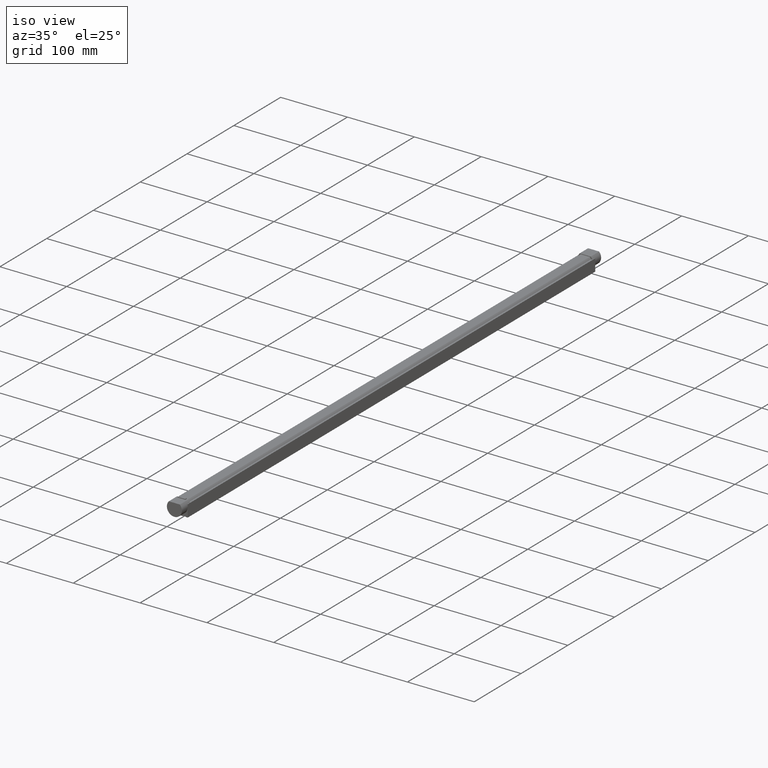
[diagram: clean part render]
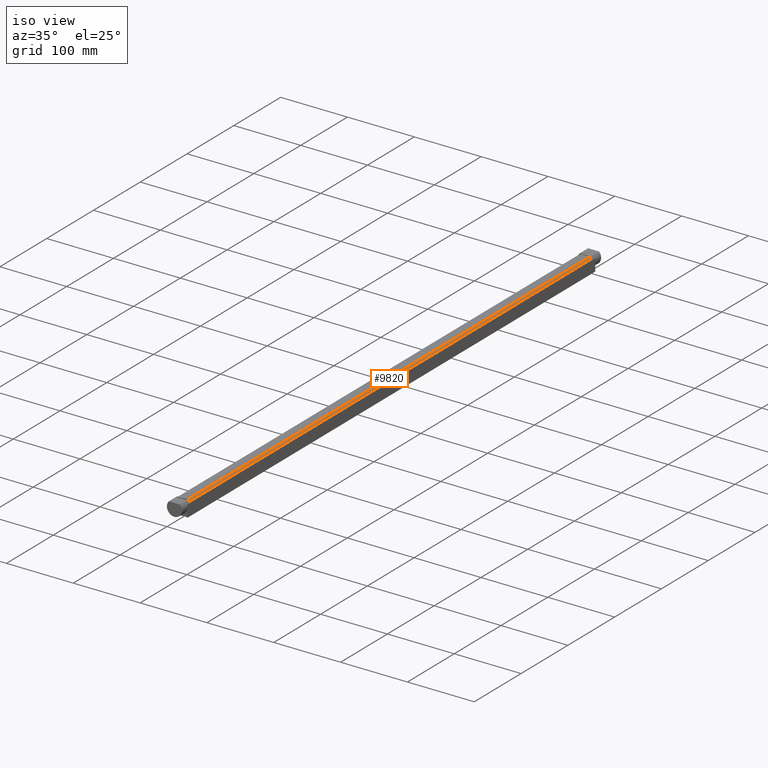
[diagram: same view with one face highlighted and labeled with its STEP entity id]
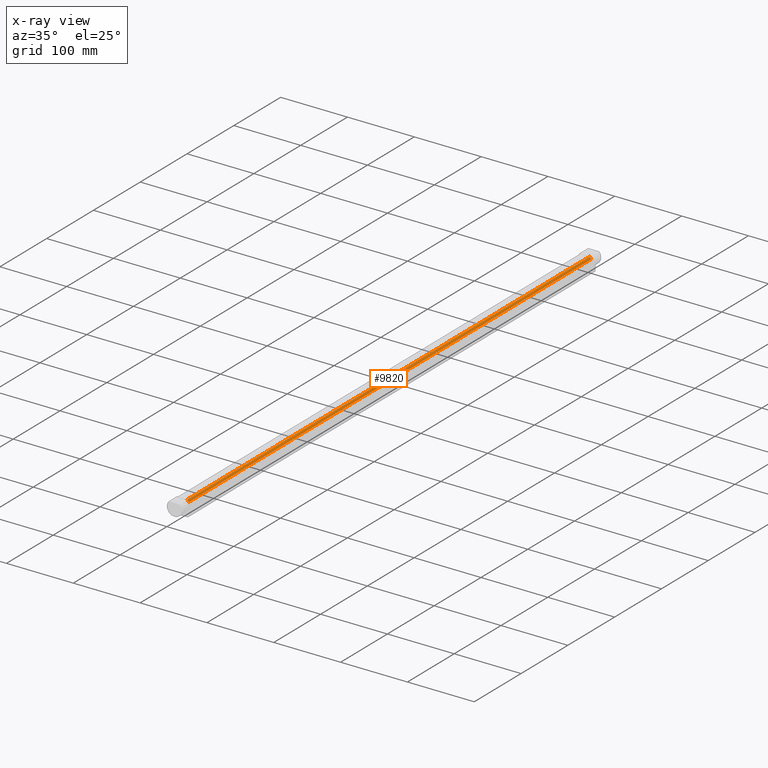
[diagram: x-ray of the same camera — body ghosted, the highlighted face saturated]
A machine part, iso view. The second image highlights one B-rep face of the part: STEP entity #9820.
The next image is the same camera in x-ray: the body ghosted, the highlighted face saturated — about 0% of this face is hidden behind the body in this view.
In plain terms, the highlighted cylindrical surface (edge-blend (fillet) strip) has radius 9.5 mm, axis along (0, -1, 0).
Its self-contained STEP definition (entity closure, byte-faithful):
#280=CARTESIAN_POINT('',(18.,8.61684396980704,-22.));
#290=VERTEX_POINT('',#280);
#320=CARTESIAN_POINT('',(98.,8.61684396980704,-22.));
#330=DIRECTION('',(-1.,0.,0.));
#340=VECTOR('',#330,1.);
#350=LINE('',#320,#340);
#360=CARTESIAN_POINT('',(878.,8.61684396980704,-22.));
#370=VERTEX_POINT('',#360);
#380=EDGE_CURVE('',#370,#290,#350,.T.);
#5650=CARTESIAN_POINT('',(18.0000000000001,0.,-18.));
#5660=DIRECTION('',(-1.,0.,0.));
#5670=DIRECTION('',(0.,0.,1.));
#5680=AXIS2_PLACEMENT_3D('',#5650,#5660,#5670);
#5690=CIRCLE('',#5680,9.5);
#5700=CARTESIAN_POINT('',(18.,6.63400331624879,-24.8));
#5710=VERTEX_POINT('',#5700);
#5720=EDGE_CURVE('',#290,#5710,#5690,.T.);
#9580=CARTESIAN_POINT('',(98.,0.,-18.));
#9590=DIRECTION('',(-1.,0.,0.));
#9600=DIRECTION('',(0.,0.,1.));
#9610=AXIS2_PLACEMENT_3D('',#9580,#9590,#9600);
#9620=CYLINDRICAL_SURFACE('',#9610,9.5);
#9630=ORIENTED_EDGE('',*,*,#5720,.F.);
#9640=CARTESIAN_POINT('',(98.,6.63400331624879,-24.8));
#9650=DIRECTION('',(-1.,0.,0.));
#9660=VECTOR('',#9650,1.);
#9670=LINE('',#9640,#9660);
#9680=CARTESIAN_POINT('',(878.,6.63400331624879,-24.8));
#9690=VERTEX_POINT('',#9680);
#9700=EDGE_CURVE('',#9690,#5710,#9670,.T.);
#9710=ORIENTED_EDGE('',*,*,#9700,.T.);
#9720=CARTESIAN_POINT('',(878.,0.,-18.));
#9730=DIRECTION('',(-1.,0.,0.));
#9740=DIRECTION('',(0.,0.,1.));
#9750=AXIS2_PLACEMENT_3D('',#9720,#9730,#9740);
#9760=CIRCLE('',#9750,9.5);
#9770=EDGE_CURVE('',#370,#9690,#9760,.T.);
#9780=ORIENTED_EDGE('',*,*,#9770,.T.);
#9790=ORIENTED_EDGE('',*,*,#380,.F.);
#9800=EDGE_LOOP('',(#9790,#9780,#9710,#9630));
#9810=FACE_OUTER_BOUND('',#9800,.T.);
#9820=ADVANCED_FACE('',(#9810),#9620,.T.);